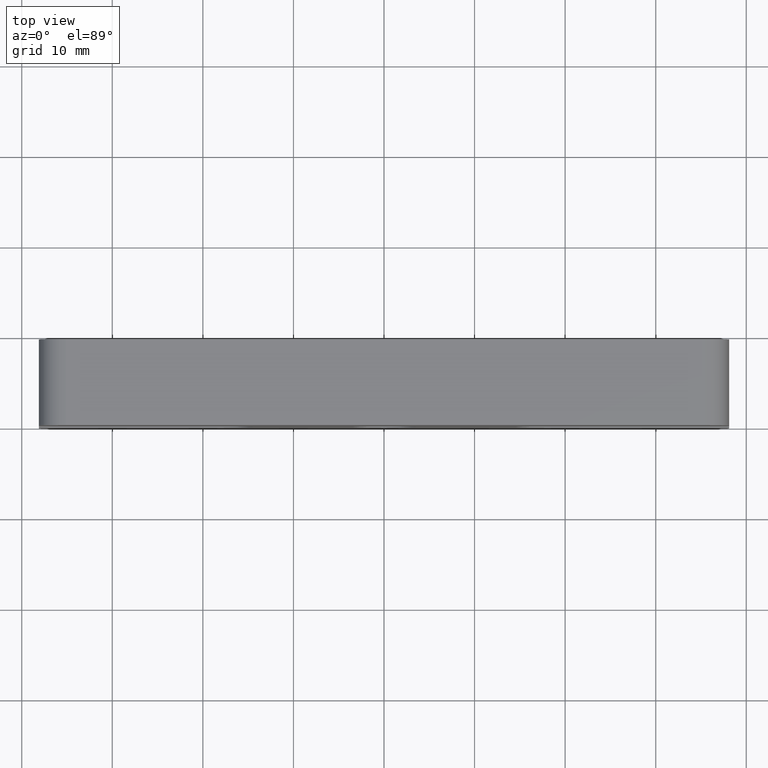
[diagram: clean part render]
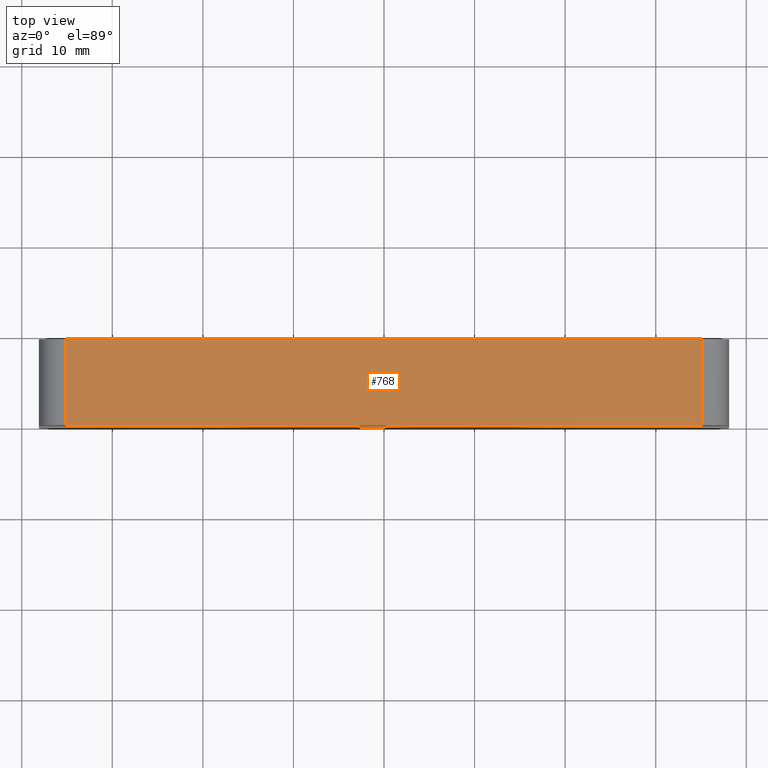
[diagram: same view with one face highlighted and labeled with its STEP entity id]
A machine part, top view. The second image highlights one B-rep face of the part: STEP entity #768.
In plain terms, the highlighted planar face has unit normal (0, 0, -1).
Its self-contained STEP definition (entity closure, byte-faithful):
#5 = AXIS2_PLACEMENT_3D ( 'NONE', #533, #335, #398 ) ;
#66 = CARTESIAN_POINT ( 'NONE',  ( 35.09999999999998000, 9.500000000000000000, 12.49999999999999800 ) ) ;
#151 = LINE ( 'NONE', #873, #538 ) ;
#161 = DIRECTION ( 'NONE',  ( 1.000000000000000000, 0.0000000000000000000, 9.884464250580091000E-017 ) ) ;
#168 = VERTEX_POINT ( 'NONE', #659 ) ;
#242 = EDGE_CURVE ( 'NONE', #922, #885, #833, .T. ) ;
#257 = CARTESIAN_POINT ( 'NONE',  ( -35.10000000000006500, 9.500000000000000000, 12.49999999999999300 ) ) ;
#264 = VECTOR ( 'NONE', #605, 1000.000000000000000 ) ;
#323 = FACE_OUTER_BOUND ( 'NONE', #813, .T. ) ;
#335 = DIRECTION ( 'NONE',  ( 9.884464250580091000E-017, 0.0000000000000000000, -1.000000000000000000 ) ) ;
#370 = LINE ( 'NONE', #397, #264 ) ;
#373 = EDGE_CURVE ( 'NONE', #168, #869, #370, .T. ) ;
#394 = ORIENTED_EDGE ( 'NONE', *, *, #373, .T. ) ;
#397 = CARTESIAN_POINT ( 'NONE',  ( -62.51947198304053200, 0.0000000000000000000, 12.49999999999998900 ) ) ;
#398 = DIRECTION ( 'NONE',  ( -1.000000000000000000, 0.0000000000000000000, -9.884464250580091000E-017 ) ) ;
#407 = EDGE_CURVE ( 'NONE', #922, #168, #624, .T. ) ;
#520 = DIRECTION ( 'NONE',  ( -0.0000000000000000000, -1.000000000000000000, -0.0000000000000000000 ) ) ;
#533 = CARTESIAN_POINT ( 'NONE',  ( -62.51947198304053200, 9.500000000000000000, 12.49999999999998900 ) ) ;
#538 = VECTOR ( 'NONE', #520, 1000.000000000000000 ) ;
#559 = ORIENTED_EDGE ( 'NONE', *, *, #623, .F. ) ;
#584 = ORIENTED_EDGE ( 'NONE', *, *, #407, .T. ) ;
#586 = CARTESIAN_POINT ( 'NONE',  ( -62.51947198304053200, 9.500000000000000000, 12.49999999999998900 ) ) ;
#601 = PLANE ( 'NONE',  #5 ) ;
#605 = DIRECTION ( 'NONE',  ( 1.000000000000000000, 0.0000000000000000000, 9.884464250580091000E-017 ) ) ;
#621 = ORIENTED_EDGE ( 'NONE', *, *, #242, .F. ) ;
#623 = EDGE_CURVE ( 'NONE', #885, #869, #151, .T. ) ;
#624 = LINE ( 'NONE', #257, #639 ) ;
#639 = VECTOR ( 'NONE', #650, 1000.000000000000000 ) ;
#650 = DIRECTION ( 'NONE',  ( -0.0000000000000000000, -1.000000000000000000, -0.0000000000000000000 ) ) ;
#659 = CARTESIAN_POINT ( 'NONE',  ( -35.10000000000006500, 0.0000000000000000000, 12.49999999999999300 ) ) ;
#661 = CARTESIAN_POINT ( 'NONE',  ( -35.10000000000006500, 9.500000000000000000, 12.49999999999999300 ) ) ;
#768 = ADVANCED_FACE ( 'NONE', ( #323 ), #601, .F. ) ;
#806 = VECTOR ( 'NONE', #161, 1000.000000000000000 ) ;
#813 = EDGE_LOOP ( 'NONE', ( #394, #559, #621, #584 ) ) ;
#833 = LINE ( 'NONE', #586, #806 ) ;
#869 = VERTEX_POINT ( 'NONE', #916 ) ;
#873 = CARTESIAN_POINT ( 'NONE',  ( 35.09999999999998000, 9.500000000000000000, 12.49999999999999800 ) ) ;
#885 = VERTEX_POINT ( 'NONE', #66 ) ;
#916 = CARTESIAN_POINT ( 'NONE',  ( 35.09999999999998000, 0.0000000000000000000, 12.49999999999999800 ) ) ;
#922 = VERTEX_POINT ( 'NONE', #661 ) ;